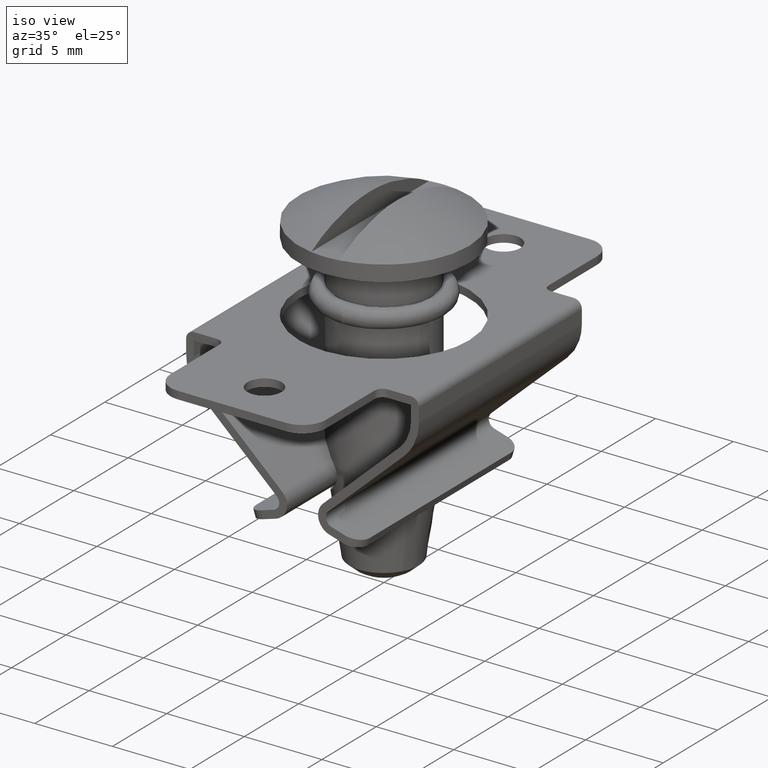
[diagram: clean part render]
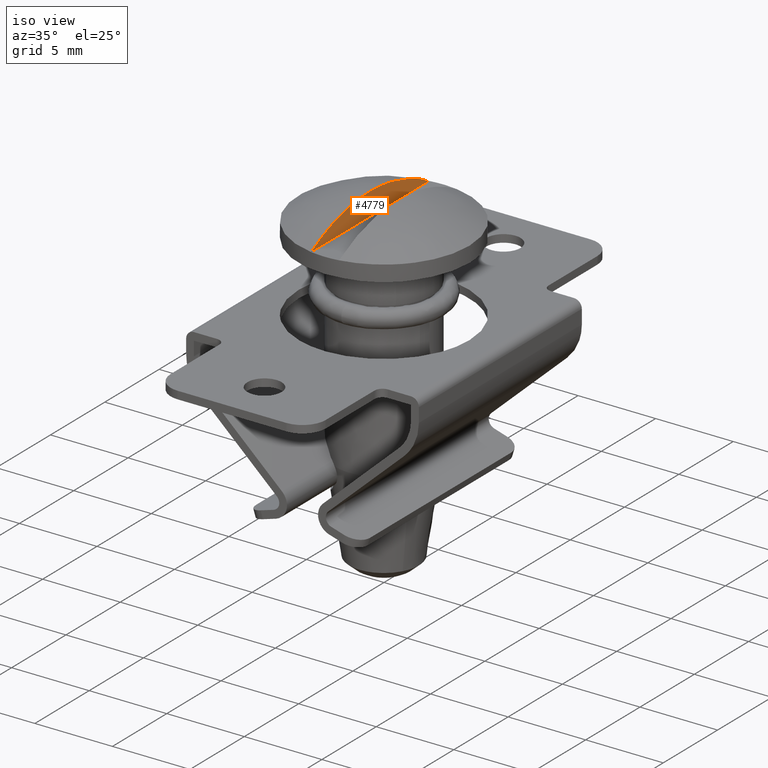
[diagram: same view with one face highlighted and labeled with its STEP entity id]
A machine part, iso view. The second image highlights one B-rep face of the part: STEP entity #4779.
In plain terms, the highlighted face is a freeform B-spline surface patch.
Its self-contained STEP definition (entity closure, byte-faithful):
#4299=CARTESIAN_POINT('',(-0.899999999999987,-5.425863986500220,20.500000000000000));
#4300=VERTEX_POINT('',#4299);
#4309=CARTESIAN_POINT('',(-0.899999999999987,-5.425863986500220,20.500294642836302));
#4310=VERTEX_POINT('',#4309);
#4311=CARTESIAN_POINT('',(-0.899999999999987,-5.425863986500220,20.500000000000000));
#4312=CARTESIAN_POINT('',(-0.899999999999987,-5.425863986500220,20.500294642836302));
#4313=QUASI_UNIFORM_CURVE('',1,(#4311,#4312),.UNSPECIFIED.,.F.,.U.);
#4314=EDGE_CURVE('',#4300,#4310,#4313,.T.);
#4316=CARTESIAN_POINT('',(-0.899999999999988,5.425863986500220,20.500294642836302));
#4317=VERTEX_POINT('',#4316);
#4343=CARTESIAN_POINT('',(-0.899999999999988,5.425863986500220,20.500000000000000));
#4344=VERTEX_POINT('',#4343);
#4345=CARTESIAN_POINT('',(-0.899999999999988,5.425863986500220,20.500000000000000));
#4346=CARTESIAN_POINT('',(-0.899999999999988,5.425863986500220,20.500294642836302));
#4347=QUASI_UNIFORM_CURVE('',1,(#4345,#4346),.UNSPECIFIED.,.F.,.U.);
#4348=EDGE_CURVE('',#4344,#4317,#4347,.T.);
#4716=CARTESIAN_POINT('',(-0.899999999999987,-5.425863986500220,20.500000000000000));
#4717=CARTESIAN_POINT('',(-0.899999999999988,5.425863986500220,20.500000000000000));
#4718=QUASI_UNIFORM_CURVE('',1,(#4716,#4717),.UNSPECIFIED.,.F.,.U.);
#4719=EDGE_CURVE('',#4300,#4344,#4718,.T.);
#4755=CARTESIAN_POINT('',(-0.899999999999987,-5.967908083323612,20.426930524269888));
#4756=CARTESIAN_POINT('',(-0.899999999999987,5.967908083323612,20.426930524269888));
#4757=CARTESIAN_POINT('',(-0.899999999999987,-5.967908083323612,22.035921938698451));
#4758=CARTESIAN_POINT('',(-0.899999999999987,5.967908083323612,22.035921938698451));
#4759=B_SPLINE_SURFACE_WITH_KNOTS('',1,1,((#4755,#4757),(#4756,#4758)),.UNSPECIFIED.,.F.,.F.,.U.,(2,2),(2,2),(0.0,11.935816166647230),(0.041708281357959,0.958292813877389),.UNSPECIFIED.);
#4760=CARTESIAN_POINT('',(-0.899999999999988,5.425863986500220,20.500294642836302));
#4761=CARTESIAN_POINT('',(-0.899999999999987,4.990709032791946,20.753293790019491));
#4762=CARTESIAN_POINT('',(-0.899999999999990,4.084923928900952,21.198265394148841));
#4763=CARTESIAN_POINT('',(-0.899999999999984,2.773394925022109,21.628205026134282));
#4764=CARTESIAN_POINT('',(-0.899999999999990,1.479143417679796,21.884380106108662));
#4765=CARTESIAN_POINT('',(-0.899999999999992,0.237399375559430,21.986786114411991));
#4766=CARTESIAN_POINT('',(-0.899999999999983,-1.111191470025334,21.934058101616991));
#4767=CARTESIAN_POINT('',(-0.899999999999989,-2.296727358757642,21.737174037543980));
#4768=CARTESIAN_POINT('',(-0.899999999999986,-3.781271187418355,21.323904760413921));
#4769=CARTESIAN_POINT('',(-0.899999999999988,-4.760375700649179,20.887341469033650));
#4770=CARTESIAN_POINT('',(-0.899999999999987,-5.425863986500220,20.500294642836302));
#4771=B_SPLINE_CURVE_WITH_KNOTS('',3,(#4760,#4761,#4762,#4763,#4764,#4765,#4766,#4767,#4768,#4769,#4770),.UNSPECIFIED.,.F.,.U.,(4,1,1,1,1,1,1,1,4),(6.180304E-009,1.510070382157862,3.020149567822545,4.130502348514433,5.462919008370702,6.750920988793576,8.172167599608155,9.060448498495649,11.369973820047001),.UNSPECIFIED.);
#4772=EDGE_CURVE('',#4317,#4310,#4771,.T.);
#4773=ORIENTED_EDGE('',*,*,#4772,.T.);
#4774=ORIENTED_EDGE('',*,*,#4314,.F.);
#4775=ORIENTED_EDGE('',*,*,#4719,.T.);
#4776=ORIENTED_EDGE('',*,*,#4348,.T.);
#4777=EDGE_LOOP('',(#4773,#4774,#4775,#4776));
#4778=FACE_OUTER_BOUND('',#4777,.T.);
#4779=ADVANCED_FACE('',(#4778),#4759,.T.);